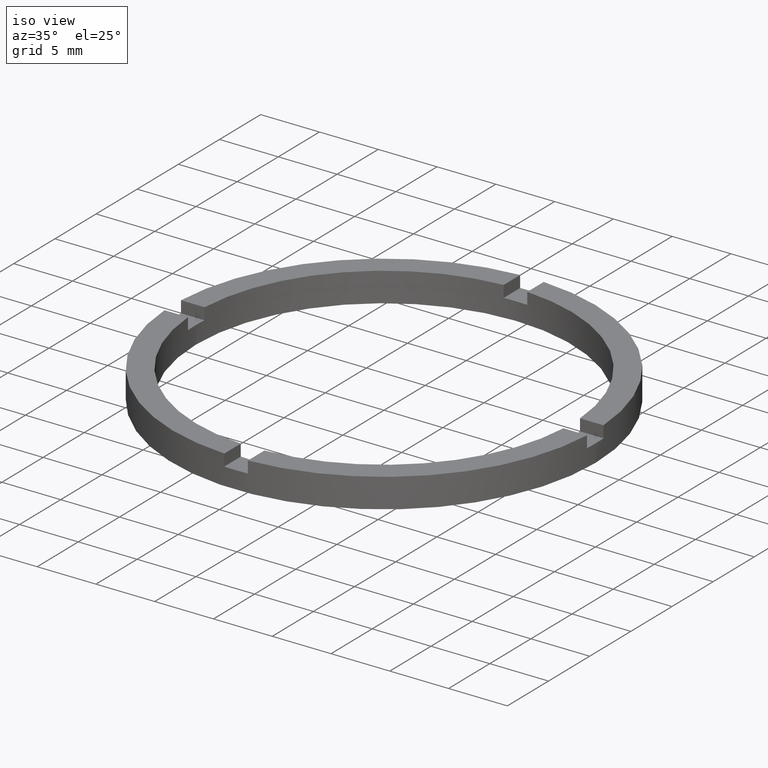
[diagram: clean part render]
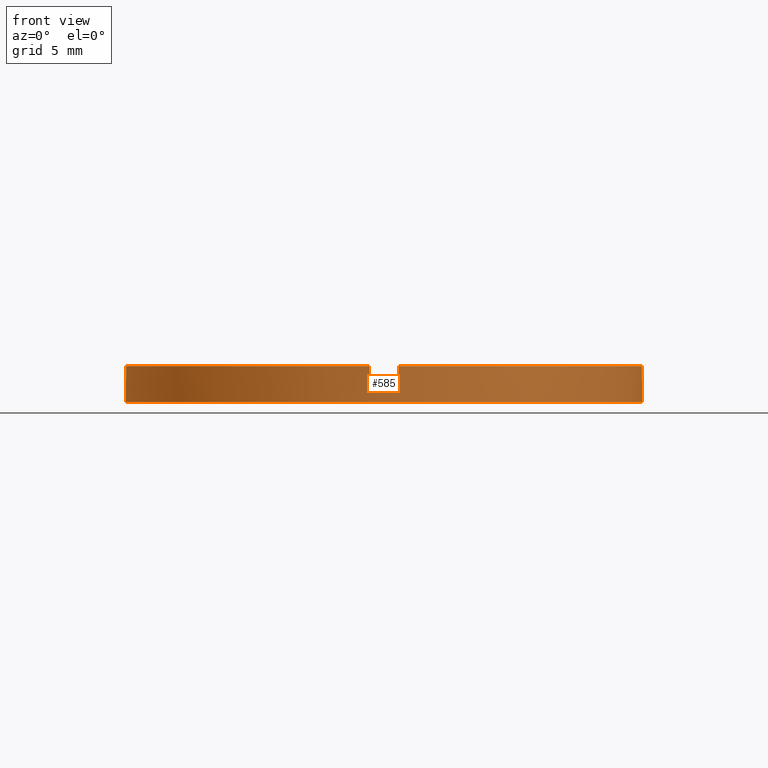
[diagram: tour spotlight — one face highlighted and labeled with its STEP entity id]
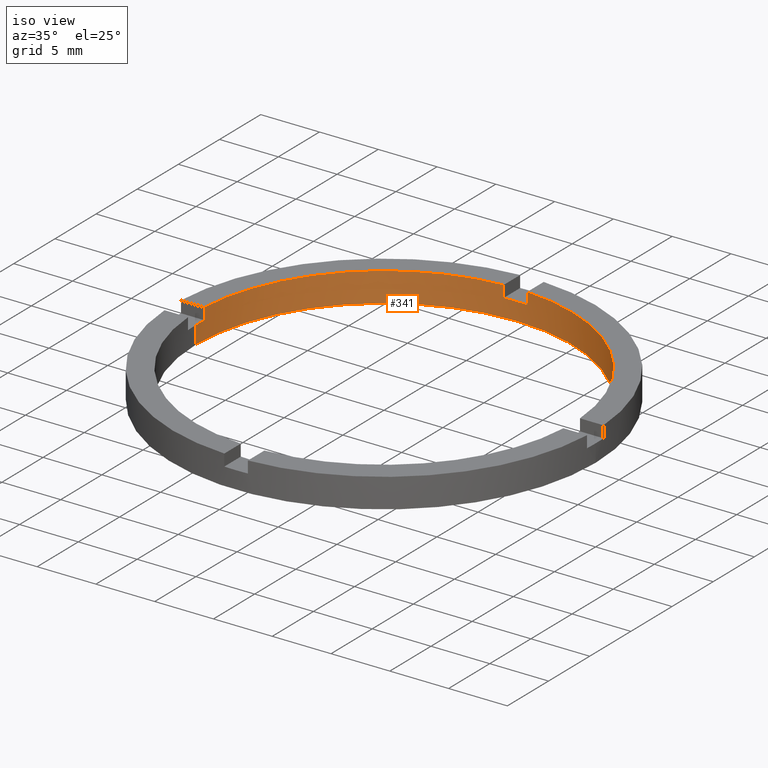
[diagram: tour spotlight — one face highlighted and labeled with its STEP entity id]
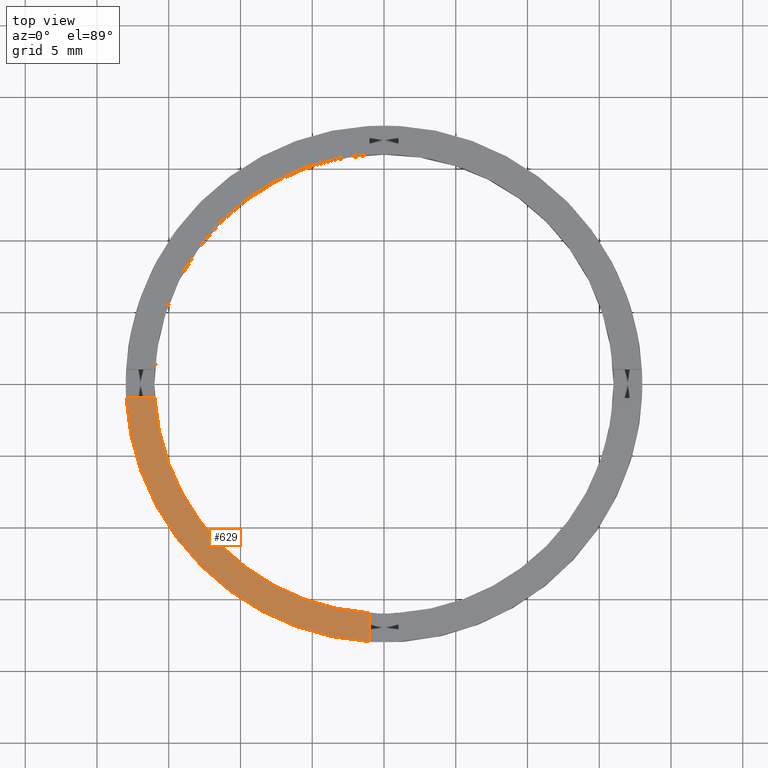
[diagram: tour spotlight — one face highlighted and labeled with its STEP entity id]
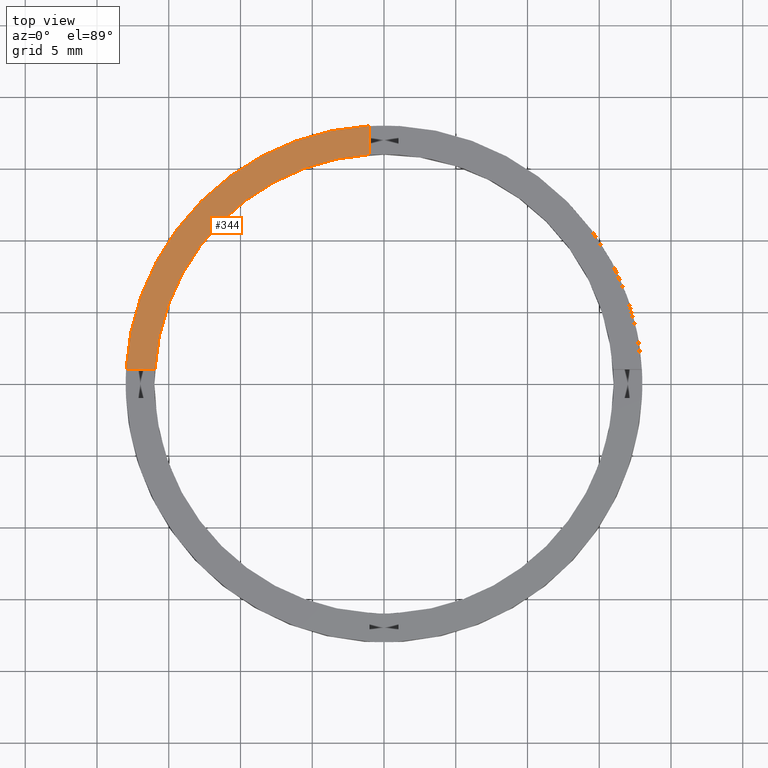
[diagram: tour spotlight — one face highlighted and labeled with its STEP entity id]
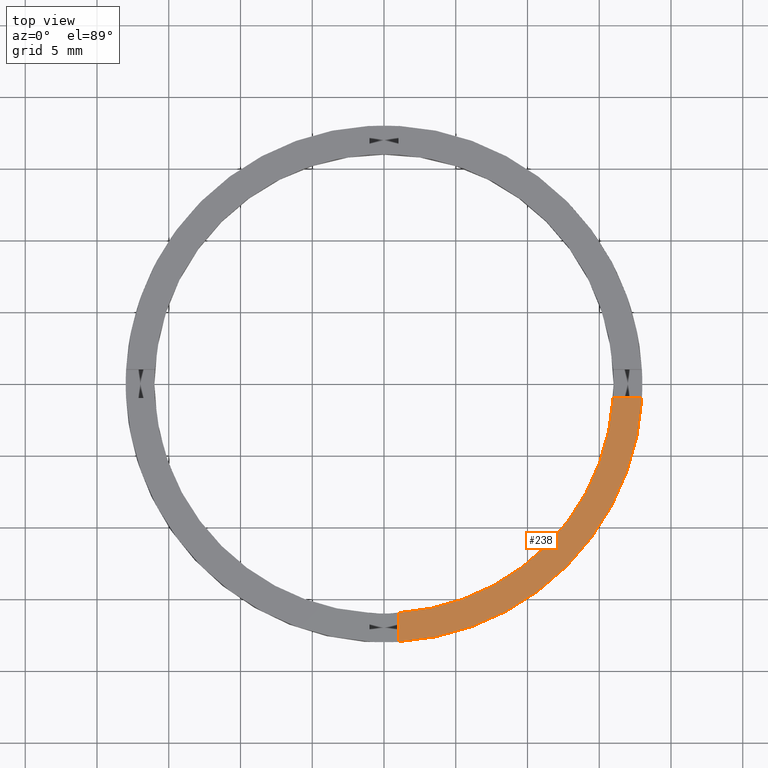
[diagram: tour spotlight — one face highlighted and labeled with its STEP entity id]
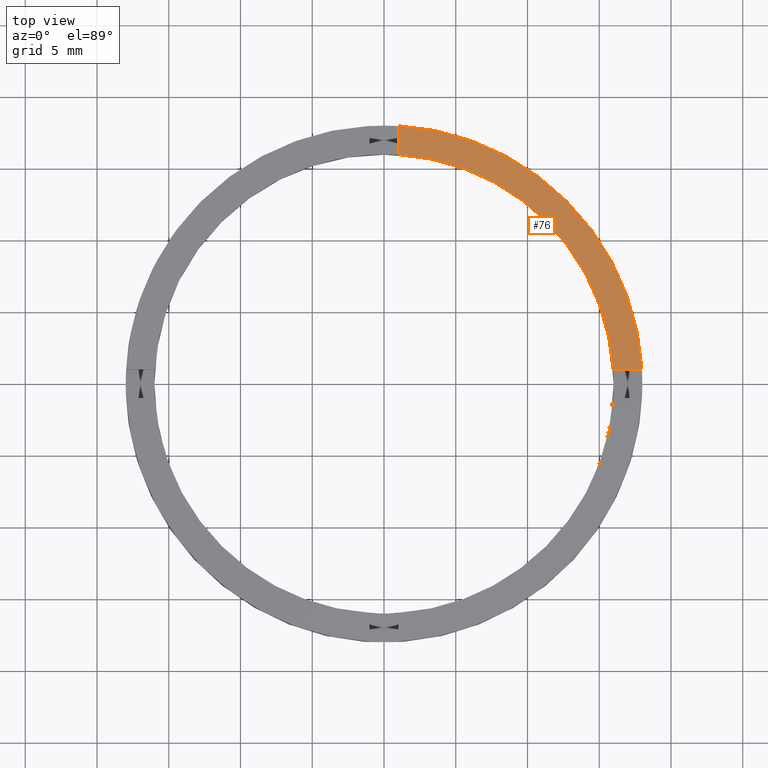
[diagram: tour spotlight — one face highlighted and labeled with its STEP entity id]
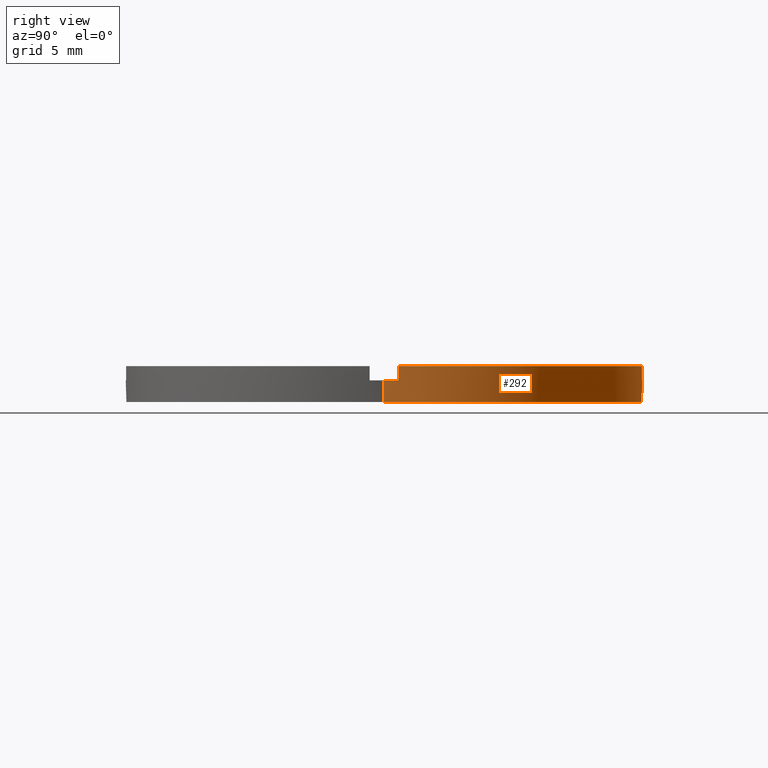
[diagram: tour spotlight — one face highlighted and labeled with its STEP entity id]
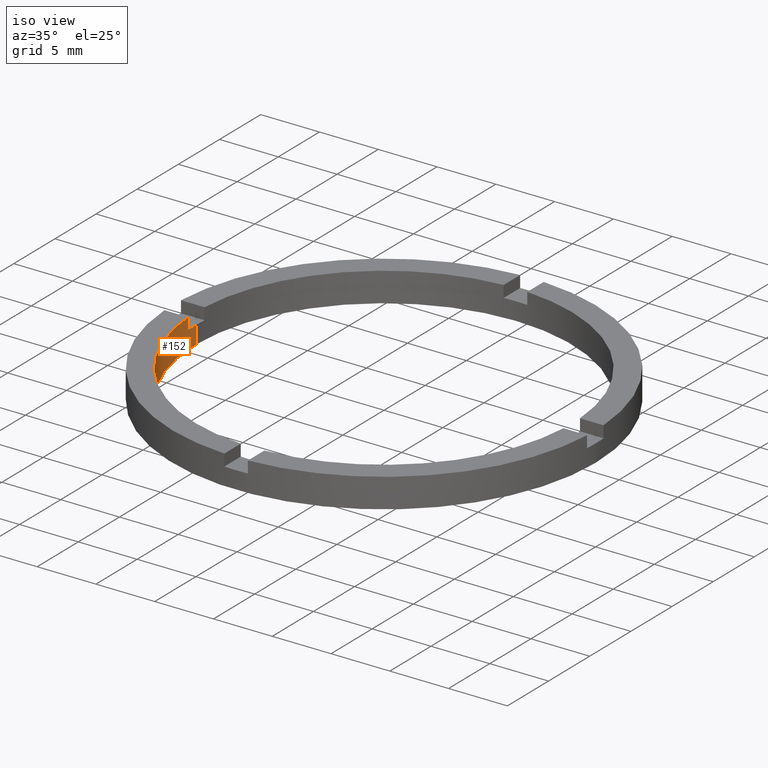
[diagram: tour spotlight — one face highlighted and labeled with its STEP entity id]
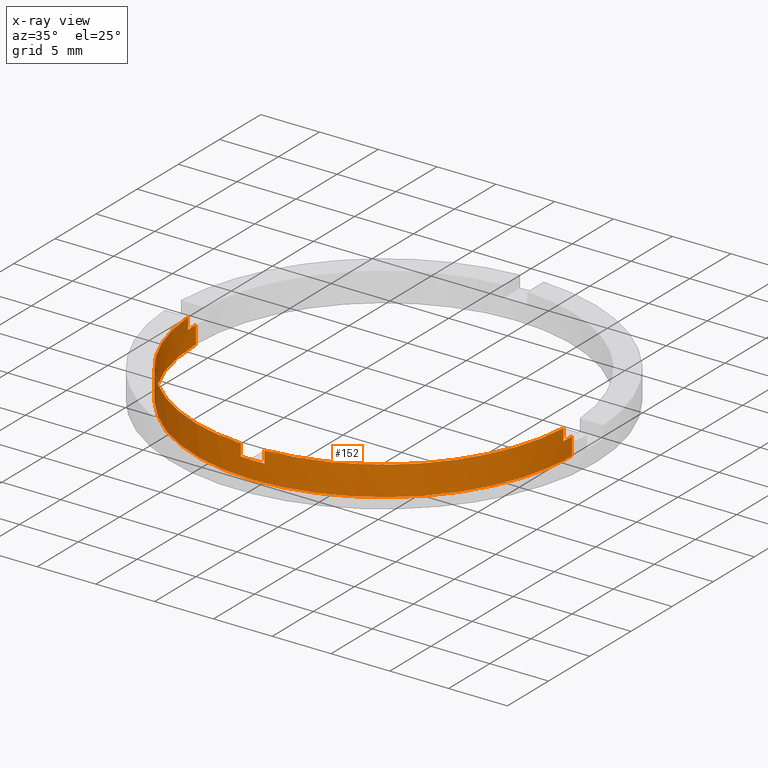
[diagram: x-ray of the same camera — body ghosted, this tour face saturated]
A machine part: a face-by-face anatomy tour. The part has 21 B-rep faces; the first image is the clean iso view, then the 8 largest visible faces are spotlighted one at a time (largest first), each with its STEP entity span.

Face 1 — front view, entity #585. In plain terms, the highlighted cylindrical surface (partial cylindrical patch) has radius 18 mm, axis along (-0, -0, -1).
Definition (entity closure, byte-faithful):
#6 = VERTEX_POINT ( 'NONE', #63 ) ;
#15 = EDGE_LOOP ( 'NONE', ( #45, #669, #408, #33, #425, #561, #39, #167, #764, #145, #23, #768 ) ) ;
#19 = VERTEX_POINT ( 'NONE', #119 ) ;
#20 = CARTESIAN_POINT ( 'NONE',  ( 0.000000000000000000, 0.000000000000000000, 1.500000000000000000 ) ) ;
#23 = ORIENTED_EDGE ( 'NONE', *, *, #427, .T. ) ;
#27 = DIRECTION ( 'NONE',  ( 0.000000000000000000, 0.000000000000000000, 1.000000000000000000 ) ) ;
#32 = VERTEX_POINT ( 'NONE', #186 ) ;
#33 = ORIENTED_EDGE ( 'NONE', *, *, #773, .F. ) ;
#37 = VERTEX_POINT ( 'NONE', #736 ) ;
#39 = ORIENTED_EDGE ( 'NONE', *, *, #457, .T. ) ;
#45 = ORIENTED_EDGE ( 'NONE', *, *, #404, .F. ) ;
#48 = DIRECTION ( 'NONE',  ( -0.000000000000000000, -0.000000000000000000, -1.000000000000000000 ) ) ;
#54 = DIRECTION ( 'NONE',  ( 0.000000000000000000, 0.000000000000000000, 1.000000000000000000 ) ) ;
#63 = CARTESIAN_POINT ( 'NONE',  ( 17.97220075561141783, -1.000000000000158762, 2.500000000000000000 ) ) ;
#70 = DIRECTION ( 'NONE',  ( -0.000000000000000000, -0.000000000000000000, -1.000000000000000000 ) ) ;
#91 = LINE ( 'NONE', #499, #98 ) ;
#92 = DIRECTION ( 'NONE',  ( 1.000000000000000000, 0.000000000000000000, 0.000000000000000000 ) ) ;
#94 = VECTOR ( 'NONE', #54, 1000.000000000000000 ) ;
#98 = VECTOR ( 'NONE', #70, 1000.000000000000000 ) ;
#101 = DIRECTION ( 'NONE',  ( -0.000000000000000000, -0.000000000000000000, -1.000000000000000000 ) ) ;
#102 = VECTOR ( 'NONE', #603, 1000.000000000000000 ) ;
#104 = VECTOR ( 'NONE', #48, 1000.000000000000000 ) ;
#113 = LINE ( 'NONE', #507, #367 ) ;
#116 = CARTESIAN_POINT ( 'NONE',  ( -17.97220075561142849, -1.000000000000023981, 1.500000000000000000 ) ) ;
#119 = CARTESIAN_POINT ( 'NONE',  ( 0.9999999999998373523, -17.97220075561143560, 2.500000000000000000 ) ) ;
#138 = CIRCLE ( 'NONE', #682, 18.00000000000000000 ) ;
#141 = DIRECTION ( 'NONE',  ( 1.000000000000000000, 0.000000000000000000, 0.000000000000000000 ) ) ;
#145 = ORIENTED_EDGE ( 'NONE', *, *, #274, .F. ) ;
#148 = CARTESIAN_POINT ( 'NONE',  ( 18.00000000000000000, 2.204364238465235428E-15, 0.000000000000000000 ) ) ;
#157 = CIRCLE ( 'NONE', #430, 18.00000000000000000 ) ;
#167 = ORIENTED_EDGE ( 'NONE', *, *, #283, .F. ) ;
#179 = DIRECTION ( 'NONE',  ( -0.000000000000000000, -0.000000000000000000, -1.000000000000000000 ) ) ;
#186 = CARTESIAN_POINT ( 'NONE',  ( 0.9999999999998373523, -17.97220075561143560, 1.500000000000000000 ) ) ;
#191 = DIRECTION ( 'NONE',  ( 0.000000000000000000, 0.000000000000000000, 1.000000000000000000 ) ) ;
#192 = CIRCLE ( 'NONE', #538, 18.00000000000000000 ) ;
#206 = VERTEX_POINT ( 'NONE', #466 ) ;
#239 = DIRECTION ( 'NONE',  ( 1.000000000000000000, 0.000000000000000000, 0.000000000000000000 ) ) ;
#263 = AXIS2_PLACEMENT_3D ( 'NONE', #20, #523, #582 ) ;
#269 = VERTEX_POINT ( 'NONE', #752 ) ;
#274 = EDGE_CURVE ( 'NONE', #760, #512, #451, .T. ) ;
#280 = VERTEX_POINT ( 'NONE', #148 ) ;
#283 = EDGE_CURVE ( 'NONE', #37, #772, #192, .T. ) ;
#308 = CARTESIAN_POINT ( 'NONE',  ( -1.000000000000161871, -17.97220075561141428, 1.500000000000000000 ) ) ;
#318 = EDGE_CURVE ( 'NONE', #206, #557, #455, .T. ) ;
#339 = CARTESIAN_POINT ( 'NONE',  ( 0.000000000000000000, 0.000000000000000000, 2.500000000000000000 ) ) ;
#342 = EDGE_CURVE ( 'NONE', #19, #32, #618, .T. ) ;
#343 = DIRECTION ( 'NONE',  ( 0.000000000000000000, 0.000000000000000000, 1.000000000000000000 ) ) ;
#346 = CARTESIAN_POINT ( 'NONE',  ( -17.97220075561142849, -1.000000000000023981, 2.500000000000000000 ) ) ;
#351 = EDGE_CURVE ( 'NONE', #269, #280, #624, .T. ) ;
#352 = DIRECTION ( 'NONE',  ( -1.000000000000000000, 0.000000000000000000, 0.000000000000000000 ) ) ;
#353 = CARTESIAN_POINT ( 'NONE',  ( 17.97220075561141783, -1.000000000000158762, 2.500000000000000000 ) ) ;
#367 = VECTOR ( 'NONE', #191, 1000.000000000000000 ) ;
#381 = DIRECTION ( 'NONE',  ( 1.000000000000000000, 0.000000000000000000, 0.000000000000000000 ) ) ;
#404 = EDGE_CURVE ( 'NONE', #557, #280, #614, .T. ) ;
#408 = ORIENTED_EDGE ( 'NONE', *, *, #555, .T. ) ;
#409 = CARTESIAN_POINT ( 'NONE',  ( 18.00000000000000000, 2.204364238465235428E-15, 1.500000000000000000 ) ) ;
#416 = CARTESIAN_POINT ( 'NONE',  ( 0.000000000000000000, 0.000000000000000000, 2.500000000000000000 ) ) ;
#417 = AXIS2_PLACEMENT_3D ( 'NONE', #706, #767, #239 ) ;
#421 = DIRECTION ( 'NONE',  ( -0.000000000000000000, 0.000000000000000000, 1.000000000000000000 ) ) ;
#425 = ORIENTED_EDGE ( 'NONE', *, *, #342, .T. ) ;
#427 = EDGE_CURVE ( 'NONE', #760, #269, #91, .T. ) ;
#430 = AXIS2_PLACEMENT_3D ( 'NONE', #416, #490, #701 ) ;
#451 = CIRCLE ( 'NONE', #778, 18.00000000000000000 ) ;
#455 = CIRCLE ( 'NONE', #263, 18.00000000000000000 ) ;
#457 = EDGE_CURVE ( 'NONE', #546, #772, #113, .T. ) ;
#466 = CARTESIAN_POINT ( 'NONE',  ( 17.97220075561141783, -1.000000000000158762, 1.500000000000000000 ) ) ;
#477 = CARTESIAN_POINT ( 'NONE',  ( -18.00000000000000000, 0.000000000000000000, 1.500000000000000000 ) ) ;
#480 = CARTESIAN_POINT ( 'NONE',  ( 0.000000000000000000, 0.000000000000000000, 2.500000000000000000 ) ) ;
#481 = AXIS2_PLACEMENT_3D ( 'NONE', #480, #179, #352 ) ;
#490 = DIRECTION ( 'NONE',  ( 0.000000000000000000, 0.000000000000000000, 1.000000000000000000 ) ) ;
#499 = CARTESIAN_POINT ( 'NONE',  ( -18.00000000000000000, 0.000000000000000000, 2.500000000000000000 ) ) ;
#507 = CARTESIAN_POINT ( 'NONE',  ( -1.000000000000162315, -17.97220075561141783, 2.500000000000000000 ) ) ;
#512 = VERTEX_POINT ( 'NONE', #116 ) ;
#520 = CARTESIAN_POINT ( 'NONE',  ( 0.000000000000000000, 0.000000000000000000, 1.500000000000000000 ) ) ;
#523 = DIRECTION ( 'NONE',  ( 0.000000000000000000, 0.000000000000000000, 1.000000000000000000 ) ) ;
#538 = AXIS2_PLACEMENT_3D ( 'NONE', #339, #343, #381 ) ;
#544 = CARTESIAN_POINT ( 'NONE',  ( -1.000000000000161871, -17.97220075561141428, 2.500000000000000000 ) ) ;
#545 = CARTESIAN_POINT ( 'NONE',  ( 18.00000000000000000, 2.204364238465235428E-15, 2.500000000000000000 ) ) ;
#546 = VERTEX_POINT ( 'NONE', #308 ) ;
#553 = CARTESIAN_POINT ( 'NONE',  ( 0.000000000000000000, 0.000000000000000000, 1.500000000000000000 ) ) ;
#555 = EDGE_CURVE ( 'NONE', #206, #6, #622, .T. ) ;
#557 = VERTEX_POINT ( 'NONE', #409 ) ;
#561 = ORIENTED_EDGE ( 'NONE', *, *, #609, .F. ) ;
#582 = DIRECTION ( 'NONE',  ( 1.000000000000000000, 0.000000000000000000, 0.000000000000000000 ) ) ;
#585 = ADVANCED_FACE ( 'NONE', ( #644 ), #648, .T. ) ;
#603 = DIRECTION ( 'NONE',  ( -0.000000000000000000, -0.000000000000000000, -1.000000000000000000 ) ) ;
#609 = EDGE_CURVE ( 'NONE', #546, #32, #138, .T. ) ;
#614 = LINE ( 'NONE', #545, #102 ) ;
#618 = LINE ( 'NONE', #771, #104 ) ;
#622 = LINE ( 'NONE', #353, #94 ) ;
#624 = CIRCLE ( 'NONE', #417, 18.00000000000000000 ) ;
#644 = FACE_OUTER_BOUND ( 'NONE', #15, .T. ) ;
#648 = CYLINDRICAL_SURFACE ( 'NONE', #481, 18.00000000000000000 ) ;
#665 = LINE ( 'NONE', #346, #674 ) ;
#669 = ORIENTED_EDGE ( 'NONE', *, *, #318, .F. ) ;
#674 = VECTOR ( 'NONE', #101, 1000.000000000000000 ) ;
#682 = AXIS2_PLACEMENT_3D ( 'NONE', #553, #421, #92 ) ;
#695 = EDGE_CURVE ( 'NONE', #37, #512, #665, .T. ) ;
#701 = DIRECTION ( 'NONE',  ( 1.000000000000000000, 0.000000000000000000, 0.000000000000000000 ) ) ;
#706 = CARTESIAN_POINT ( 'NONE',  ( 0.000000000000000000, 0.000000000000000000, 0.000000000000000000 ) ) ;
#736 = CARTESIAN_POINT ( 'NONE',  ( -17.97220075561142849, -1.000000000000023981, 2.500000000000000000 ) ) ;
#752 = CARTESIAN_POINT ( 'NONE',  ( -18.00000000000000000, 0.000000000000000000, 0.000000000000000000 ) ) ;
#760 = VERTEX_POINT ( 'NONE', #477 ) ;
#764 = ORIENTED_EDGE ( 'NONE', *, *, #695, .T. ) ;
#767 = DIRECTION ( 'NONE',  ( 0.000000000000000000, 0.000000000000000000, 1.000000000000000000 ) ) ;
#768 = ORIENTED_EDGE ( 'NONE', *, *, #351, .T. ) ;
#771 = CARTESIAN_POINT ( 'NONE',  ( 0.9999999999998377964, -17.97220075561143915, 2.500000000000000000 ) ) ;
#772 = VERTEX_POINT ( 'NONE', #544 ) ;
#773 = EDGE_CURVE ( 'NONE', #19, #6, #157, .T. ) ;
#778 = AXIS2_PLACEMENT_3D ( 'NONE', #520, #27, #141 ) ;

Face 2 — iso view, entity #341. In plain terms, the highlighted cylindrical surface (partial cylindrical patch) has radius 16 mm, axis along (-0, -0, -1).
Definition (entity closure, byte-faithful):
#3 = ORIENTED_EDGE ( 'NONE', *, *, #307, .T. ) ;
#4 = DIRECTION ( 'NONE',  ( 0.000000000000000000, 0.000000000000000000, 1.000000000000000000 ) ) ;
#11 = VERTEX_POINT ( 'NONE', #434 ) ;
#13 = ORIENTED_EDGE ( 'NONE', *, *, #592, .T. ) ;
#59 = CARTESIAN_POINT ( 'NONE',  ( 0.000000000000000000, 0.000000000000000000, 1.500000000000000000 ) ) ;
#60 = CARTESIAN_POINT ( 'NONE',  ( 15.96871942267132027, 0.9999999999998411271, 1.500000000000000000 ) ) ;
#71 = EDGE_CURVE ( 'NONE', #514, #722, #391, .T. ) ;
#79 = CARTESIAN_POINT ( 'NONE',  ( 0.9999999999999742428, 15.96871942267130962, 1.500000000000000000 ) ) ;
#87 = VECTOR ( 'NONE', #593, 1000.000000000000000 ) ;
#96 = FACE_OUTER_BOUND ( 'NONE', #554, .T. ) ;
#97 = DIRECTION ( 'NONE',  ( 0.000000000000000000, -0.000000000000000000, 1.000000000000000000 ) ) ;
#105 = DIRECTION ( 'NONE',  ( 1.000000000000000000, 0.000000000000000000, 0.000000000000000000 ) ) ;
#110 = CYLINDRICAL_SURFACE ( 'NONE', #464, 16.00000000000000000 ) ;
#120 = CIRCLE ( 'NONE', #222, 16.00000000000000000 ) ;
#126 = CARTESIAN_POINT ( 'NONE',  ( -16.00000000000000000, 0.000000000000000000, 2.500000000000000000 ) ) ;
#150 = EDGE_CURVE ( 'NONE', #11, #260, #658, .T. ) ;
#151 = LINE ( 'NONE', #293, #418 ) ;
#166 = EDGE_CURVE ( 'NONE', #279, #508, #183, .T. ) ;
#169 = EDGE_CURVE ( 'NONE', #255, #572, #151, .T. ) ;
#170 = VECTOR ( 'NONE', #349, 1000.000000000000000 ) ;
#173 = VERTEX_POINT ( 'NONE', #443 ) ;
#183 = LINE ( 'NONE', #237, #170 ) ;
#193 = CARTESIAN_POINT ( 'NONE',  ( -15.96871942267131317, 0.9999999999999763522, 2.500000000000000000 ) ) ;
#194 = ORIENTED_EDGE ( 'NONE', *, *, #150, .T. ) ;
#195 = DIRECTION ( 'NONE',  ( 1.000000000000000000, 0.000000000000000000, 0.000000000000000000 ) ) ;
#200 = CIRCLE ( 'NONE', #703, 16.00000000000000000 ) ;
#222 = AXIS2_PLACEMENT_3D ( 'NONE', #781, #395, #105 ) ;
#231 = CARTESIAN_POINT ( 'NONE',  ( 0.000000000000000000, 0.000000000000000000, 2.500000000000000000 ) ) ;
#237 = CARTESIAN_POINT ( 'NONE',  ( 0.9999999999999746869, 15.96871942267131317, 2.500000000000000000 ) ) ;
#255 = VERTEX_POINT ( 'NONE', #377 ) ;
#260 = VERTEX_POINT ( 'NONE', #625 ) ;
#270 = CARTESIAN_POINT ( 'NONE',  ( 0.000000000000000000, 0.000000000000000000, 0.000000000000000000 ) ) ;
#275 = DIRECTION ( 'NONE',  ( -0.000000000000000000, -0.000000000000000000, -1.000000000000000000 ) ) ;
#278 = ORIENTED_EDGE ( 'NONE', *, *, #526, .T. ) ;
#279 = VERTEX_POINT ( 'NONE', #79 ) ;
#285 = VERTEX_POINT ( 'NONE', #288 ) ;
#286 = ORIENTED_EDGE ( 'NONE', *, *, #166, .F. ) ;
#288 = CARTESIAN_POINT ( 'NONE',  ( 15.96871942267132027, 0.9999999999998411271, 2.500000000000000000 ) ) ;
#293 = CARTESIAN_POINT ( 'NONE',  ( -1.000000000000025313, 15.96871942267130962, 2.500000000000000000 ) ) ;
#296 = CARTESIAN_POINT ( 'NONE',  ( -1.000000000000024869, 15.96871942267130606, 1.500000000000000000 ) ) ;
#307 = EDGE_CURVE ( 'NONE', #285, #508, #200, .T. ) ;
#321 = AXIS2_PLACEMENT_3D ( 'NONE', #365, #4, #195 ) ;
#331 = DIRECTION ( 'NONE',  ( 0.000000000000000000, 0.000000000000000000, 1.000000000000000000 ) ) ;
#337 = DIRECTION ( 'NONE',  ( 1.000000000000000000, 0.000000000000000000, 0.000000000000000000 ) ) ;
#341 = ADVANCED_FACE ( 'NONE', ( #96 ), #110, .F. ) ;
#347 = DIRECTION ( 'NONE',  ( -1.000000000000000000, 0.000000000000000000, 0.000000000000000000 ) ) ;
#349 = DIRECTION ( 'NONE',  ( 0.000000000000000000, 0.000000000000000000, 1.000000000000000000 ) ) ;
#360 = CIRCLE ( 'NONE', #529, 16.00000000000000000 ) ;
#365 = CARTESIAN_POINT ( 'NONE',  ( 0.000000000000000000, 0.000000000000000000, 1.500000000000000000 ) ) ;
#368 = VECTOR ( 'NONE', #611, 1000.000000000000000 ) ;
#375 = CARTESIAN_POINT ( 'NONE',  ( 15.96871942267132027, 0.9999999999998411271, 2.500000000000000000 ) ) ;
#377 = CARTESIAN_POINT ( 'NONE',  ( -1.000000000000024869, 15.96871942267130606, 2.500000000000000000 ) ) ;
#378 = LINE ( 'NONE', #375, #368 ) ;
#385 = CIRCLE ( 'NONE', #634, 16.00000000000000000 ) ;
#391 = CIRCLE ( 'NONE', #321, 16.00000000000000000 ) ;
#393 = VECTOR ( 'NONE', #445, 1000.000000000000000 ) ;
#395 = DIRECTION ( 'NONE',  ( 0.000000000000000000, 0.000000000000000000, 1.000000000000000000 ) ) ;
#397 = VECTOR ( 'NONE', #331, 1000.000000000000000 ) ;
#406 = LINE ( 'NONE', #487, #397 ) ;
#418 = VECTOR ( 'NONE', #761, 1000.000000000000000 ) ;
#419 = ORIENTED_EDGE ( 'NONE', *, *, #446, .F. ) ;
#422 = CARTESIAN_POINT ( 'NONE',  ( 0.000000000000000000, 0.000000000000000000, 1.500000000000000000 ) ) ;
#428 = CARTESIAN_POINT ( 'NONE',  ( 16.00000000000000000, 1.959434878635765131E-15, 2.500000000000000000 ) ) ;
#429 = ORIENTED_EDGE ( 'NONE', *, *, #521, .F. ) ;
#434 = CARTESIAN_POINT ( 'NONE',  ( -16.00000000000000000, 0.000000000000000000, 1.500000000000000000 ) ) ;
#436 = ORIENTED_EDGE ( 'NONE', *, *, #581, .T. ) ;
#443 = CARTESIAN_POINT ( 'NONE',  ( 16.00000000000000000, 1.959434878635765131E-15, 0.000000000000000000 ) ) ;
#445 = DIRECTION ( 'NONE',  ( -0.000000000000000000, -0.000000000000000000, -1.000000000000000000 ) ) ;
#446 = EDGE_CURVE ( 'NONE', #173, #260, #620, .T. ) ;
#449 = ORIENTED_EDGE ( 'NONE', *, *, #169, .F. ) ;
#464 = AXIS2_PLACEMENT_3D ( 'NONE', #630, #275, #347 ) ;
#487 = CARTESIAN_POINT ( 'NONE',  ( -15.96871942267131317, 0.9999999999999763522, 2.500000000000000000 ) ) ;
#489 = EDGE_CURVE ( 'NONE', #285, #722, #378, .T. ) ;
#492 = VERTEX_POINT ( 'NONE', #685 ) ;
#498 = DIRECTION ( 'NONE',  ( 1.000000000000000000, 0.000000000000000000, 0.000000000000000000 ) ) ;
#505 = CARTESIAN_POINT ( 'NONE',  ( 16.00000000000000000, 1.959434878635765131E-15, 1.500000000000000000 ) ) ;
#508 = VERTEX_POINT ( 'NONE', #549 ) ;
#514 = VERTEX_POINT ( 'NONE', #505 ) ;
#515 = VERTEX_POINT ( 'NONE', #193 ) ;
#521 = EDGE_CURVE ( 'NONE', #514, #173, #613, .T. ) ;
#526 = EDGE_CURVE ( 'NONE', #279, #572, #360, .T. ) ;
#529 = AXIS2_PLACEMENT_3D ( 'NONE', #422, #97, #661 ) ;
#549 = CARTESIAN_POINT ( 'NONE',  ( 0.9999999999999742428, 15.96871942267130962, 2.500000000000000000 ) ) ;
#554 = EDGE_LOOP ( 'NONE', ( #429, #668, #779, #3, #286, #278, #449, #436, #708, #13, #194, #419 ) ) ;
#572 = VERTEX_POINT ( 'NONE', #296 ) ;
#581 = EDGE_CURVE ( 'NONE', #255, #515, #120, .T. ) ;
#592 = EDGE_CURVE ( 'NONE', #492, #11, #385, .T. ) ;
#593 = DIRECTION ( 'NONE',  ( -0.000000000000000000, -0.000000000000000000, -1.000000000000000000 ) ) ;
#611 = DIRECTION ( 'NONE',  ( -0.000000000000000000, -0.000000000000000000, -1.000000000000000000 ) ) ;
#613 = LINE ( 'NONE', #428, #87 ) ;
#619 = EDGE_CURVE ( 'NONE', #492, #515, #406, .T. ) ;
#620 = CIRCLE ( 'NONE', #713, 16.00000000000000000 ) ;
#625 = CARTESIAN_POINT ( 'NONE',  ( -16.00000000000000000, 0.000000000000000000, 0.000000000000000000 ) ) ;
#630 = CARTESIAN_POINT ( 'NONE',  ( 0.000000000000000000, 0.000000000000000000, 2.500000000000000000 ) ) ;
#634 = AXIS2_PLACEMENT_3D ( 'NONE', #59, #660, #498 ) ;
#658 = LINE ( 'NONE', #126, #393 ) ;
#659 = DIRECTION ( 'NONE',  ( 0.000000000000000000, 0.000000000000000000, 1.000000000000000000 ) ) ;
#660 = DIRECTION ( 'NONE',  ( 0.000000000000000000, 0.000000000000000000, 1.000000000000000000 ) ) ;
#661 = DIRECTION ( 'NONE',  ( 1.000000000000000000, 0.000000000000000000, 0.000000000000000000 ) ) ;
#668 = ORIENTED_EDGE ( 'NONE', *, *, #71, .T. ) ;
#678 = DIRECTION ( 'NONE',  ( 1.000000000000000000, 0.000000000000000000, 0.000000000000000000 ) ) ;
#685 = CARTESIAN_POINT ( 'NONE',  ( -15.96871942267131317, 0.9999999999999763522, 1.500000000000000000 ) ) ;
#694 = DIRECTION ( 'NONE',  ( 0.000000000000000000, 0.000000000000000000, 1.000000000000000000 ) ) ;
#703 = AXIS2_PLACEMENT_3D ( 'NONE', #231, #694, #337 ) ;
#708 = ORIENTED_EDGE ( 'NONE', *, *, #619, .F. ) ;
#713 = AXIS2_PLACEMENT_3D ( 'NONE', #270, #659, #678 ) ;
#722 = VERTEX_POINT ( 'NONE', #60 ) ;
#761 = DIRECTION ( 'NONE',  ( -0.000000000000000000, -0.000000000000000000, -1.000000000000000000 ) ) ;
#779 = ORIENTED_EDGE ( 'NONE', *, *, #489, .F. ) ;
#781 = CARTESIAN_POINT ( 'NONE',  ( 0.000000000000000000, 0.000000000000000000, 2.500000000000000000 ) ) ;

Face 3 — top view, entity #629. In plain terms, the highlighted planar face has unit normal (0, 0, 1).
Definition (entity closure, byte-faithful):
#37 = VERTEX_POINT ( 'NONE', #736 ) ;
#66 = PLANE ( 'NONE',  #182 ) ;
#83 = DIRECTION ( 'NONE',  ( 1.301042606982605074E-16, -1.000000000000000000, 0.000000000000000000 ) ) ;
#99 = EDGE_CURVE ( 'NONE', #537, #460, #646, .T. ) ;
#128 = CARTESIAN_POINT ( 'NONE',  ( -1.000000000000162093, -15.96871942267129718, 2.500000000000000000 ) ) ;
#142 = FACE_OUTER_BOUND ( 'NONE', #704, .T. ) ;
#182 = AXIS2_PLACEMENT_3D ( 'NONE', #203, #679, #215 ) ;
#192 = CIRCLE ( 'NONE', #538, 18.00000000000000000 ) ;
#203 = CARTESIAN_POINT ( 'NONE',  ( 0.000000000000000000, 0.000000000000000000, 2.500000000000000000 ) ) ;
#215 = DIRECTION ( 'NONE',  ( 1.000000000000000000, 0.000000000000000000, -0.000000000000000000 ) ) ;
#250 = ORIENTED_EDGE ( 'NONE', *, *, #283, .T. ) ;
#283 = EDGE_CURVE ( 'NONE', #37, #772, #192, .T. ) ;
#339 = CARTESIAN_POINT ( 'NONE',  ( 0.000000000000000000, 0.000000000000000000, 2.500000000000000000 ) ) ;
#343 = DIRECTION ( 'NONE',  ( 0.000000000000000000, 0.000000000000000000, 1.000000000000000000 ) ) ;
#381 = DIRECTION ( 'NONE',  ( 1.000000000000000000, 0.000000000000000000, 0.000000000000000000 ) ) ;
#392 = EDGE_CURVE ( 'NONE', #37, #537, #639, .T. ) ;
#410 = LINE ( 'NONE', #777, #673 ) ;
#431 = CARTESIAN_POINT ( 'NONE',  ( 0.000000000000000000, 0.000000000000000000, 2.500000000000000000 ) ) ;
#438 = CARTESIAN_POINT ( 'NONE',  ( -8.000000000000184741, -1.000000000000022204, 2.500000000000000000 ) ) ;
#460 = VERTEX_POINT ( 'NONE', #128 ) ;
#493 = CARTESIAN_POINT ( 'NONE',  ( -15.96871942267130962, -1.000000000000023759, 2.500000000000000000 ) ) ;
#501 = DIRECTION ( 'NONE',  ( 0.000000000000000000, 0.000000000000000000, 1.000000000000000000 ) ) ;
#537 = VERTEX_POINT ( 'NONE', #493 ) ;
#538 = AXIS2_PLACEMENT_3D ( 'NONE', #339, #343, #381 ) ;
#544 = CARTESIAN_POINT ( 'NONE',  ( -1.000000000000161871, -17.97220075561141428, 2.500000000000000000 ) ) ;
#547 = ORIENTED_EDGE ( 'NONE', *, *, #392, .F. ) ;
#629 = ADVANCED_FACE ( 'NONE', ( #142 ), #66, .T. ) ;
#631 = VECTOR ( 'NONE', #737, 1000.000000000000000 ) ;
#639 = LINE ( 'NONE', #438, #631 ) ;
#646 = CIRCLE ( 'NONE', #746, 16.00000000000000000 ) ;
#673 = VECTOR ( 'NONE', #83, 1000.000000000000000 ) ;
#676 = ORIENTED_EDGE ( 'NONE', *, *, #742, .F. ) ;
#679 = DIRECTION ( 'NONE',  ( 0.000000000000000000, 0.000000000000000000, 1.000000000000000000 ) ) ;
#704 = EDGE_LOOP ( 'NONE', ( #676, #780, #547, #250 ) ) ;
#736 = CARTESIAN_POINT ( 'NONE',  ( -17.97220075561142849, -1.000000000000023981, 2.500000000000000000 ) ) ;
#737 = DIRECTION ( 'NONE',  ( 1.000000000000000000, 1.734723475976806848E-16, -0.000000000000000000 ) ) ;
#742 = EDGE_CURVE ( 'NONE', #460, #772, #410, .T. ) ;
#746 = AXIS2_PLACEMENT_3D ( 'NONE', #431, #501, #748 ) ;
#748 = DIRECTION ( 'NONE',  ( 1.000000000000000000, 0.000000000000000000, 0.000000000000000000 ) ) ;
#772 = VERTEX_POINT ( 'NONE', #544 ) ;
#777 = CARTESIAN_POINT ( 'NONE',  ( -1.000000000000163425, -8.000000000000179412, 2.500000000000000000 ) ) ;
#780 = ORIENTED_EDGE ( 'NONE', *, *, #99, .F. ) ;

Face 4 — top view, entity #344. In plain terms, the highlighted planar face has unit normal (0, 0, 1).
Definition (entity closure, byte-faithful):
#36 = ORIENTED_EDGE ( 'NONE', *, *, #657, .F. ) ;
#86 = DIRECTION ( 'NONE',  ( 0.000000000000000000, 0.000000000000000000, 1.000000000000000000 ) ) ;
#105 = DIRECTION ( 'NONE',  ( 1.000000000000000000, 0.000000000000000000, 0.000000000000000000 ) ) ;
#114 = LINE ( 'NONE', #298, #636 ) ;
#120 = CIRCLE ( 'NONE', #222, 16.00000000000000000 ) ;
#121 = CIRCLE ( 'NONE', #336, 18.00000000000000000 ) ;
#127 = AXIS2_PLACEMENT_3D ( 'NONE', #527, #86, #396 ) ;
#181 = DIRECTION ( 'NONE',  ( -0.000000000000000000, -1.000000000000000000, -0.000000000000000000 ) ) ;
#193 = CARTESIAN_POINT ( 'NONE',  ( -15.96871942267131317, 0.9999999999999763522, 2.500000000000000000 ) ) ;
#222 = AXIS2_PLACEMENT_3D ( 'NONE', #781, #395, #105 ) ;
#244 = EDGE_LOOP ( 'NONE', ( #36, #516, #295, #265 ) ) ;
#255 = VERTEX_POINT ( 'NONE', #377 ) ;
#265 = ORIENTED_EDGE ( 'NONE', *, *, #581, .F. ) ;
#295 = ORIENTED_EDGE ( 'NONE', *, *, #366, .F. ) ;
#298 = CARTESIAN_POINT ( 'NONE',  ( -8.000000000000184741, 0.9999999999999779066, 2.500000000000000000 ) ) ;
#330 = DIRECTION ( 'NONE',  ( -1.000000000000000000, -1.734723475976806848E-16, 0.000000000000000000 ) ) ;
#336 = AXIS2_PLACEMENT_3D ( 'NONE', #652, #504, #597 ) ;
#344 = ADVANCED_FACE ( 'NONE', ( #628 ), #472, .T. ) ;
#366 = EDGE_CURVE ( 'NONE', #515, #580, #114, .T. ) ;
#377 = CARTESIAN_POINT ( 'NONE',  ( -1.000000000000024869, 15.96871942267130606, 2.500000000000000000 ) ) ;
#395 = DIRECTION ( 'NONE',  ( 0.000000000000000000, 0.000000000000000000, 1.000000000000000000 ) ) ;
#396 = DIRECTION ( 'NONE',  ( 1.000000000000000000, 0.000000000000000000, -0.000000000000000000 ) ) ;
#402 = CARTESIAN_POINT ( 'NONE',  ( -17.97220075561142849, 0.9999999999999761302, 2.500000000000000000 ) ) ;
#423 = VECTOR ( 'NONE', #181, 1000.000000000000000 ) ;
#424 = LINE ( 'NONE', #745, #423 ) ;
#472 = PLANE ( 'NONE',  #127 ) ;
#496 = VERTEX_POINT ( 'NONE', #749 ) ;
#504 = DIRECTION ( 'NONE',  ( 0.000000000000000000, 0.000000000000000000, 1.000000000000000000 ) ) ;
#515 = VERTEX_POINT ( 'NONE', #193 ) ;
#516 = ORIENTED_EDGE ( 'NONE', *, *, #590, .T. ) ;
#527 = CARTESIAN_POINT ( 'NONE',  ( 0.000000000000000000, 0.000000000000000000, 2.500000000000000000 ) ) ;
#580 = VERTEX_POINT ( 'NONE', #402 ) ;
#581 = EDGE_CURVE ( 'NONE', #255, #515, #120, .T. ) ;
#590 = EDGE_CURVE ( 'NONE', #496, #580, #121, .T. ) ;
#597 = DIRECTION ( 'NONE',  ( 1.000000000000000000, 0.000000000000000000, 0.000000000000000000 ) ) ;
#628 = FACE_OUTER_BOUND ( 'NONE', #244, .T. ) ;
#636 = VECTOR ( 'NONE', #330, 1000.000000000000000 ) ;
#652 = CARTESIAN_POINT ( 'NONE',  ( 0.000000000000000000, 0.000000000000000000, 2.500000000000000000 ) ) ;
#657 = EDGE_CURVE ( 'NONE', #496, #255, #424, .T. ) ;
#745 = CARTESIAN_POINT ( 'NONE',  ( -1.000000000000025313, 7.999999999999998224, 2.500000000000000000 ) ) ;
#749 = CARTESIAN_POINT ( 'NONE',  ( -1.000000000000024869, 17.97220075561142494, 2.500000000000000000 ) ) ;
#781 = CARTESIAN_POINT ( 'NONE',  ( 0.000000000000000000, 0.000000000000000000, 2.500000000000000000 ) ) ;

Face 5 — top view, entity #238. In plain terms, the highlighted planar face has unit normal (0, 0, 1).
Definition (entity closure, byte-faithful):
#6 = VERTEX_POINT ( 'NONE', #63 ) ;
#18 = DIRECTION ( 'NONE',  ( 0.000000000000000000, 0.000000000000000000, 1.000000000000000000 ) ) ;
#19 = VERTEX_POINT ( 'NONE', #119 ) ;
#30 = DIRECTION ( 'NONE',  ( 0.000000000000000000, 0.000000000000000000, 1.000000000000000000 ) ) ;
#63 = CARTESIAN_POINT ( 'NONE',  ( 17.97220075561141783, -1.000000000000158762, 2.500000000000000000 ) ) ;
#69 = DIRECTION ( 'NONE',  ( 1.000000000000000000, 4.336808689942017120E-17, 0.000000000000000000 ) ) ;
#106 = EDGE_CURVE ( 'NONE', #246, #6, #386, .T. ) ;
#111 = EDGE_CURVE ( 'NONE', #19, #171, #133, .T. ) ;
#119 = CARTESIAN_POINT ( 'NONE',  ( 0.9999999999998373523, -17.97220075561143560, 2.500000000000000000 ) ) ;
#125 = VECTOR ( 'NONE', #132, 1000.000000000000000 ) ;
#131 = VECTOR ( 'NONE', #69, 1000.000000000000000 ) ;
#132 = DIRECTION ( 'NONE',  ( -1.301042606982605074E-16, 1.000000000000000000, -0.000000000000000000 ) ) ;
#133 = LINE ( 'NONE', #610, #125 ) ;
#157 = CIRCLE ( 'NONE', #430, 18.00000000000000000 ) ;
#160 = ORIENTED_EDGE ( 'NONE', *, *, #773, .T. ) ;
#171 = VERTEX_POINT ( 'NONE', #615 ) ;
#238 = ADVANCED_FACE ( 'NONE', ( #433 ), #569, .T. ) ;
#246 = VERTEX_POINT ( 'NONE', #290 ) ;
#267 = ORIENTED_EDGE ( 'NONE', *, *, #287, .F. ) ;
#287 = EDGE_CURVE ( 'NONE', #171, #246, #709, .T. ) ;
#290 = CARTESIAN_POINT ( 'NONE',  ( 15.96871942267130429, -1.000000000000158984, 2.500000000000000000 ) ) ;
#302 = AXIS2_PLACEMENT_3D ( 'NONE', #747, #18, #688 ) ;
#386 = LINE ( 'NONE', #509, #131 ) ;
#416 = CARTESIAN_POINT ( 'NONE',  ( 0.000000000000000000, 0.000000000000000000, 2.500000000000000000 ) ) ;
#430 = AXIS2_PLACEMENT_3D ( 'NONE', #416, #490, #701 ) ;
#433 = FACE_OUTER_BOUND ( 'NONE', #750, .T. ) ;
#490 = DIRECTION ( 'NONE',  ( 0.000000000000000000, 0.000000000000000000, 1.000000000000000000 ) ) ;
#506 = AXIS2_PLACEMENT_3D ( 'NONE', #757, #30, #518 ) ;
#509 = CARTESIAN_POINT ( 'NONE',  ( 7.999999999999992895, -1.000000000000159206, 2.500000000000000000 ) ) ;
#513 = ORIENTED_EDGE ( 'NONE', *, *, #106, .F. ) ;
#518 = DIRECTION ( 'NONE',  ( 1.000000000000000000, 0.000000000000000000, 0.000000000000000000 ) ) ;
#524 = ORIENTED_EDGE ( 'NONE', *, *, #111, .F. ) ;
#569 = PLANE ( 'NONE',  #302 ) ;
#610 = CARTESIAN_POINT ( 'NONE',  ( 0.9999999999998365752, -8.000000000000179412, 2.500000000000000000 ) ) ;
#615 = CARTESIAN_POINT ( 'NONE',  ( 0.9999999999998371303, -15.96871942267132027, 2.500000000000000000 ) ) ;
#688 = DIRECTION ( 'NONE',  ( 1.000000000000000000, 0.000000000000000000, -0.000000000000000000 ) ) ;
#701 = DIRECTION ( 'NONE',  ( 1.000000000000000000, 0.000000000000000000, 0.000000000000000000 ) ) ;
#709 = CIRCLE ( 'NONE', #506, 16.00000000000000000 ) ;
#747 = CARTESIAN_POINT ( 'NONE',  ( 0.000000000000000000, 0.000000000000000000, 2.500000000000000000 ) ) ;
#750 = EDGE_LOOP ( 'NONE', ( #513, #267, #524, #160 ) ) ;
#757 = CARTESIAN_POINT ( 'NONE',  ( 0.000000000000000000, 0.000000000000000000, 2.500000000000000000 ) ) ;
#773 = EDGE_CURVE ( 'NONE', #19, #6, #157, .T. ) ;

Face 6 — top view, entity #76. In plain terms, the highlighted planar face has unit normal (0, 0, 1).
Definition (entity closure, byte-faithful):
#1 = EDGE_LOOP ( 'NONE', ( #689, #310, #299, #311 ) ) ;
#14 = CARTESIAN_POINT ( 'NONE',  ( 0.9999999999999742428, 17.97220075561142494, 2.500000000000000000 ) ) ;
#16 = CARTESIAN_POINT ( 'NONE',  ( 0.000000000000000000, 0.000000000000000000, 2.500000000000000000 ) ) ;
#57 = DIRECTION ( 'NONE',  ( -1.000000000000000000, -4.336808689942017120E-17, -0.000000000000000000 ) ) ;
#64 = DIRECTION ( 'NONE',  ( 1.000000000000000000, 0.000000000000000000, 0.000000000000000000 ) ) ;
#76 = ADVANCED_FACE ( 'NONE', ( #370 ), #180, .T. ) ;
#163 = VERTEX_POINT ( 'NONE', #164 ) ;
#164 = CARTESIAN_POINT ( 'NONE',  ( 17.97220075561143560, 0.9999999999998412381, 2.500000000000000000 ) ) ;
#180 = PLANE ( 'NONE',  #670 ) ;
#200 = CIRCLE ( 'NONE', #703, 16.00000000000000000 ) ;
#229 = VERTEX_POINT ( 'NONE', #14 ) ;
#231 = CARTESIAN_POINT ( 'NONE',  ( 0.000000000000000000, 0.000000000000000000, 2.500000000000000000 ) ) ;
#285 = VERTEX_POINT ( 'NONE', #288 ) ;
#288 = CARTESIAN_POINT ( 'NONE',  ( 15.96871942267132027, 0.9999999999998411271, 2.500000000000000000 ) ) ;
#299 = ORIENTED_EDGE ( 'NONE', *, *, #766, .F. ) ;
#307 = EDGE_CURVE ( 'NONE', #285, #508, #200, .T. ) ;
#310 = ORIENTED_EDGE ( 'NONE', *, *, #307, .F. ) ;
#311 = ORIENTED_EDGE ( 'NONE', *, *, #503, .T. ) ;
#325 = DIRECTION ( 'NONE',  ( 0.000000000000000000, 0.000000000000000000, 1.000000000000000000 ) ) ;
#337 = DIRECTION ( 'NONE',  ( 1.000000000000000000, 0.000000000000000000, 0.000000000000000000 ) ) ;
#355 = CARTESIAN_POINT ( 'NONE',  ( 7.999999999999992895, 0.9999999999998409050, 2.500000000000000000 ) ) ;
#370 = FACE_OUTER_BOUND ( 'NONE', #1, .T. ) ;
#400 = LINE ( 'NONE', #355, #675 ) ;
#405 = CARTESIAN_POINT ( 'NONE',  ( 0.9999999999999746869, 7.999999999999998224, 2.500000000000000000 ) ) ;
#503 = EDGE_CURVE ( 'NONE', #163, #229, #632, .T. ) ;
#508 = VERTEX_POINT ( 'NONE', #549 ) ;
#535 = DIRECTION ( 'NONE',  ( 0.000000000000000000, 1.000000000000000000, 0.000000000000000000 ) ) ;
#549 = CARTESIAN_POINT ( 'NONE',  ( 0.9999999999999742428, 15.96871942267130962, 2.500000000000000000 ) ) ;
#564 = AXIS2_PLACEMENT_3D ( 'NONE', #738, #325, #64 ) ;
#594 = DIRECTION ( 'NONE',  ( 0.000000000000000000, 0.000000000000000000, 1.000000000000000000 ) ) ;
#605 = DIRECTION ( 'NONE',  ( 1.000000000000000000, 0.000000000000000000, -0.000000000000000000 ) ) ;
#632 = CIRCLE ( 'NONE', #564, 18.00000000000000000 ) ;
#667 = VECTOR ( 'NONE', #535, 1000.000000000000000 ) ;
#670 = AXIS2_PLACEMENT_3D ( 'NONE', #16, #594, #605 ) ;
#675 = VECTOR ( 'NONE', #57, 1000.000000000000000 ) ;
#681 = LINE ( 'NONE', #405, #667 ) ;
#689 = ORIENTED_EDGE ( 'NONE', *, *, #744, .F. ) ;
#694 = DIRECTION ( 'NONE',  ( 0.000000000000000000, 0.000000000000000000, 1.000000000000000000 ) ) ;
#703 = AXIS2_PLACEMENT_3D ( 'NONE', #231, #694, #337 ) ;
#738 = CARTESIAN_POINT ( 'NONE',  ( 0.000000000000000000, 0.000000000000000000, 2.500000000000000000 ) ) ;
#744 = EDGE_CURVE ( 'NONE', #508, #229, #681, .T. ) ;
#766 = EDGE_CURVE ( 'NONE', #163, #285, #400, .T. ) ;

Face 7 — right view, entity #292. In plain terms, the highlighted cylindrical surface (partial cylindrical patch) has radius 18 mm, axis along (-0, -0, -1).
Definition (entity closure, byte-faithful):
#14 = CARTESIAN_POINT ( 'NONE',  ( 0.9999999999999742428, 17.97220075561142494, 2.500000000000000000 ) ) ;
#21 = CARTESIAN_POINT ( 'NONE',  ( 0.000000000000000000, 0.000000000000000000, 1.500000000000000000 ) ) ;
#28 = EDGE_CURVE ( 'NONE', #496, #551, #407, .T. ) ;
#31 = AXIS2_PLACEMENT_3D ( 'NONE', #700, #227, #284 ) ;
#42 = DIRECTION ( 'NONE',  ( 0.000000000000000000, 0.000000000000000000, 1.000000000000000000 ) ) ;
#49 = ORIENTED_EDGE ( 'NONE', *, *, #731, .T. ) ;
#64 = DIRECTION ( 'NONE',  ( 1.000000000000000000, 0.000000000000000000, 0.000000000000000000 ) ) ;
#70 = DIRECTION ( 'NONE',  ( -0.000000000000000000, -0.000000000000000000, -1.000000000000000000 ) ) ;
#72 = CARTESIAN_POINT ( 'NONE',  ( 17.97220075561143560, 0.9999999999998412381, 2.500000000000000000 ) ) ;
#73 = DIRECTION ( 'NONE',  ( 0.000000000000000000, 0.000000000000000000, 1.000000000000000000 ) ) ;
#85 = DIRECTION ( 'NONE',  ( 0.000000000000000000, 0.000000000000000000, 1.000000000000000000 ) ) ;
#88 = DIRECTION ( 'NONE',  ( 1.000000000000000000, 0.000000000000000000, 0.000000000000000000 ) ) ;
#91 = LINE ( 'NONE', #499, #98 ) ;
#95 = CARTESIAN_POINT ( 'NONE',  ( -17.97220075561142849, 0.9999999999999761302, 2.500000000000000000 ) ) ;
#98 = VECTOR ( 'NONE', #70, 1000.000000000000000 ) ;
#102 = VECTOR ( 'NONE', #603, 1000.000000000000000 ) ;
#108 = CARTESIAN_POINT ( 'NONE',  ( -1.000000000000025313, 17.97220075561142849, 2.500000000000000000 ) ) ;
#121 = CIRCLE ( 'NONE', #336, 18.00000000000000000 ) ;
#135 = DIRECTION ( 'NONE',  ( -0.000000000000000000, -0.000000000000000000, -1.000000000000000000 ) ) ;
#137 = LINE ( 'NONE', #95, #420 ) ;
#148 = CARTESIAN_POINT ( 'NONE',  ( 18.00000000000000000, 2.204364238465235428E-15, 0.000000000000000000 ) ) ;
#155 = DIRECTION ( 'NONE',  ( 0.000000000000000000, 0.000000000000000000, 1.000000000000000000 ) ) ;
#156 = EDGE_CURVE ( 'NONE', #542, #760, #705, .T. ) ;
#163 = VERTEX_POINT ( 'NONE', #164 ) ;
#164 = CARTESIAN_POINT ( 'NONE',  ( 17.97220075561143560, 0.9999999999998412381, 2.500000000000000000 ) ) ;
#172 = CIRCLE ( 'NONE', #31, 18.00000000000000000 ) ;
#176 = DIRECTION ( 'NONE',  ( -0.000000000000000000, -0.000000000000000000, -1.000000000000000000 ) ) ;
#205 = VECTOR ( 'NONE', #135, 1000.000000000000000 ) ;
#207 = EDGE_CURVE ( 'NONE', #522, #551, #172, .T. ) ;
#214 = CARTESIAN_POINT ( 'NONE',  ( 0.000000000000000000, 0.000000000000000000, 2.500000000000000000 ) ) ;
#219 = ORIENTED_EDGE ( 'NONE', *, *, #571, .T. ) ;
#227 = DIRECTION ( 'NONE',  ( 0.000000000000000000, -0.000000000000000000, 1.000000000000000000 ) ) ;
#229 = VERTEX_POINT ( 'NONE', #14 ) ;
#234 = AXIS2_PLACEMENT_3D ( 'NONE', #21, #73, #264 ) ;
#241 = CARTESIAN_POINT ( 'NONE',  ( 0.9999999999999742428, 17.97220075561142494, 1.500000000000000000 ) ) ;
#245 = CARTESIAN_POINT ( 'NONE',  ( 0.000000000000000000, 0.000000000000000000, 0.000000000000000000 ) ) ;
#247 = AXIS2_PLACEMENT_3D ( 'NONE', #214, #623, #371 ) ;
#252 = ORIENTED_EDGE ( 'NONE', *, *, #590, .F. ) ;
#254 = ORIENTED_EDGE ( 'NONE', *, *, #503, .F. ) ;
#264 = DIRECTION ( 'NONE',  ( 1.000000000000000000, 0.000000000000000000, 0.000000000000000000 ) ) ;
#269 = VERTEX_POINT ( 'NONE', #752 ) ;
#280 = VERTEX_POINT ( 'NONE', #148 ) ;
#284 = DIRECTION ( 'NONE',  ( 1.000000000000000000, 0.000000000000000000, 0.000000000000000000 ) ) ;
#292 = ADVANCED_FACE ( 'NONE', ( #716 ), #718, .T. ) ;
#309 = AXIS2_PLACEMENT_3D ( 'NONE', #245, #589, #350 ) ;
#325 = DIRECTION ( 'NONE',  ( 0.000000000000000000, 0.000000000000000000, 1.000000000000000000 ) ) ;
#326 = EDGE_CURVE ( 'NONE', #163, #469, #459, .T. ) ;
#333 = AXIS2_PLACEMENT_3D ( 'NONE', #476, #42, #88 ) ;
#336 = AXIS2_PLACEMENT_3D ( 'NONE', #652, #504, #597 ) ;
#350 = DIRECTION ( 'NONE',  ( 1.000000000000000000, 0.000000000000000000, 0.000000000000000000 ) ) ;
#371 = DIRECTION ( 'NONE',  ( -1.000000000000000000, 0.000000000000000000, 0.000000000000000000 ) ) ;
#372 = CARTESIAN_POINT ( 'NONE',  ( 17.97220075561143560, 0.9999999999998412381, 1.500000000000000000 ) ) ;
#380 = LINE ( 'NONE', #640, #645 ) ;
#398 = VECTOR ( 'NONE', #176, 1000.000000000000000 ) ;
#402 = CARTESIAN_POINT ( 'NONE',  ( -17.97220075561142849, 0.9999999999999761302, 2.500000000000000000 ) ) ;
#404 = EDGE_CURVE ( 'NONE', #557, #280, #614, .T. ) ;
#407 = LINE ( 'NONE', #108, #398 ) ;
#409 = CARTESIAN_POINT ( 'NONE',  ( 18.00000000000000000, 2.204364238465235428E-15, 1.500000000000000000 ) ) ;
#420 = VECTOR ( 'NONE', #155, 1000.000000000000000 ) ;
#427 = EDGE_CURVE ( 'NONE', #760, #269, #91, .T. ) ;
#459 = LINE ( 'NONE', #72, #205 ) ;
#469 = VERTEX_POINT ( 'NONE', #372 ) ;
#476 = CARTESIAN_POINT ( 'NONE',  ( 0.000000000000000000, 0.000000000000000000, 1.500000000000000000 ) ) ;
#477 = CARTESIAN_POINT ( 'NONE',  ( -18.00000000000000000, 0.000000000000000000, 1.500000000000000000 ) ) ;
#484 = ORIENTED_EDGE ( 'NONE', *, *, #404, .T. ) ;
#496 = VERTEX_POINT ( 'NONE', #749 ) ;
#499 = CARTESIAN_POINT ( 'NONE',  ( -18.00000000000000000, 0.000000000000000000, 2.500000000000000000 ) ) ;
#500 = EDGE_CURVE ( 'NONE', #557, #469, #641, .T. ) ;
#503 = EDGE_CURVE ( 'NONE', #163, #229, #632, .T. ) ;
#504 = DIRECTION ( 'NONE',  ( 0.000000000000000000, 0.000000000000000000, 1.000000000000000000 ) ) ;
#510 = ORIENTED_EDGE ( 'NONE', *, *, #427, .F. ) ;
#522 = VERTEX_POINT ( 'NONE', #241 ) ;
#542 = VERTEX_POINT ( 'NONE', #723 ) ;
#545 = CARTESIAN_POINT ( 'NONE',  ( 18.00000000000000000, 2.204364238465235428E-15, 2.500000000000000000 ) ) ;
#551 = VERTEX_POINT ( 'NONE', #733 ) ;
#557 = VERTEX_POINT ( 'NONE', #409 ) ;
#564 = AXIS2_PLACEMENT_3D ( 'NONE', #738, #325, #64 ) ;
#571 = EDGE_CURVE ( 'NONE', #522, #229, #380, .T. ) ;
#580 = VERTEX_POINT ( 'NONE', #402 ) ;
#589 = DIRECTION ( 'NONE',  ( 0.000000000000000000, 0.000000000000000000, 1.000000000000000000 ) ) ;
#590 = EDGE_CURVE ( 'NONE', #496, #580, #121, .T. ) ;
#597 = DIRECTION ( 'NONE',  ( 1.000000000000000000, 0.000000000000000000, 0.000000000000000000 ) ) ;
#603 = DIRECTION ( 'NONE',  ( -0.000000000000000000, -0.000000000000000000, -1.000000000000000000 ) ) ;
#614 = LINE ( 'NONE', #545, #102 ) ;
#623 = DIRECTION ( 'NONE',  ( -0.000000000000000000, -0.000000000000000000, -1.000000000000000000 ) ) ;
#632 = CIRCLE ( 'NONE', #564, 18.00000000000000000 ) ;
#640 = CARTESIAN_POINT ( 'NONE',  ( 0.9999999999999746869, 17.97220075561142849, 2.500000000000000000 ) ) ;
#641 = CIRCLE ( 'NONE', #234, 18.00000000000000000 ) ;
#645 = VECTOR ( 'NONE', #85, 1000.000000000000000 ) ;
#652 = CARTESIAN_POINT ( 'NONE',  ( 0.000000000000000000, 0.000000000000000000, 2.500000000000000000 ) ) ;
#663 = ORIENTED_EDGE ( 'NONE', *, *, #156, .F. ) ;
#686 = CIRCLE ( 'NONE', #309, 18.00000000000000000 ) ;
#687 = ORIENTED_EDGE ( 'NONE', *, *, #759, .T. ) ;
#700 = CARTESIAN_POINT ( 'NONE',  ( 0.000000000000000000, 0.000000000000000000, 1.500000000000000000 ) ) ;
#705 = CIRCLE ( 'NONE', #333, 18.00000000000000000 ) ;
#716 = FACE_OUTER_BOUND ( 'NONE', #758, .T. ) ;
#718 = CYLINDRICAL_SURFACE ( 'NONE', #247, 18.00000000000000000 ) ;
#723 = CARTESIAN_POINT ( 'NONE',  ( -17.97220075561142849, 0.9999999999999761302, 1.500000000000000000 ) ) ;
#731 = EDGE_CURVE ( 'NONE', #542, #580, #137, .T. ) ;
#733 = CARTESIAN_POINT ( 'NONE',  ( -1.000000000000024869, 17.97220075561142494, 1.500000000000000000 ) ) ;
#735 = ORIENTED_EDGE ( 'NONE', *, *, #500, .F. ) ;
#738 = CARTESIAN_POINT ( 'NONE',  ( 0.000000000000000000, 0.000000000000000000, 2.500000000000000000 ) ) ;
#740 = ORIENTED_EDGE ( 'NONE', *, *, #28, .T. ) ;
#749 = CARTESIAN_POINT ( 'NONE',  ( -1.000000000000024869, 17.97220075561142494, 2.500000000000000000 ) ) ;
#752 = CARTESIAN_POINT ( 'NONE',  ( -18.00000000000000000, 0.000000000000000000, 0.000000000000000000 ) ) ;
#758 = EDGE_LOOP ( 'NONE', ( #735, #484, #687, #510, #663, #49, #252, #740, #763, #219, #254, #776 ) ) ;
#759 = EDGE_CURVE ( 'NONE', #280, #269, #686, .T. ) ;
#760 = VERTEX_POINT ( 'NONE', #477 ) ;
#763 = ORIENTED_EDGE ( 'NONE', *, *, #207, .F. ) ;
#776 = ORIENTED_EDGE ( 'NONE', *, *, #326, .T. ) ;

Face 8 — iso view, entity #152. An x-ray twin of the same camera follows (body ghosted, this face saturated) — the face is partly hidden behind the body. In plain terms, the highlighted cylindrical surface (partial cylindrical patch) has radius 16 mm, axis along (-0, -0, -1).
Definition (entity closure, byte-faithful):
#11 = VERTEX_POINT ( 'NONE', #434 ) ;
#22 = ORIENTED_EDGE ( 'NONE', *, *, #612, .F. ) ;
#24 = EDGE_CURVE ( 'NONE', #11, #50, #666, .T. ) ;
#30 = DIRECTION ( 'NONE',  ( 0.000000000000000000, 0.000000000000000000, 1.000000000000000000 ) ) ;
#41 = ORIENTED_EDGE ( 'NONE', *, *, #314, .F. ) ;
#43 = EDGE_LOOP ( 'NONE', ( #223, #475, #567, #162, #486, #41, #232, #22, #248, #226, #483, #574 ) ) ;
#46 = DIRECTION ( 'NONE',  ( 1.000000000000000000, 0.000000000000000000, 0.000000000000000000 ) ) ;
#50 = VERTEX_POINT ( 'NONE', #257 ) ;
#62 = CARTESIAN_POINT ( 'NONE',  ( -1.000000000000162537, -15.96871942267130073, 2.500000000000000000 ) ) ;
#87 = VECTOR ( 'NONE', #593, 1000.000000000000000 ) ;
#99 = EDGE_CURVE ( 'NONE', #537, #460, #646, .T. ) ;
#117 = CIRCLE ( 'NONE', #479, 16.00000000000000000 ) ;
#123 = CIRCLE ( 'NONE', #583, 16.00000000000000000 ) ;
#126 = CARTESIAN_POINT ( 'NONE',  ( -16.00000000000000000, 0.000000000000000000, 2.500000000000000000 ) ) ;
#128 = CARTESIAN_POINT ( 'NONE',  ( -1.000000000000162093, -15.96871942267129718, 2.500000000000000000 ) ) ;
#150 = EDGE_CURVE ( 'NONE', #11, #260, #658, .T. ) ;
#152 = ADVANCED_FACE ( 'NONE', ( #439 ), #168, .F. ) ;
#154 = VECTOR ( 'NONE', #401, 1000.000000000000000 ) ;
#161 = DIRECTION ( 'NONE',  ( -0.000000000000000000, 0.000000000000000000, 1.000000000000000000 ) ) ;
#162 = ORIENTED_EDGE ( 'NONE', *, *, #150, .F. ) ;
#168 = CYLINDRICAL_SURFACE ( 'NONE', #174, 16.00000000000000000 ) ;
#171 = VERTEX_POINT ( 'NONE', #615 ) ;
#173 = VERTEX_POINT ( 'NONE', #443 ) ;
#174 = AXIS2_PLACEMENT_3D ( 'NONE', #637, #530, #345 ) ;
#184 = DIRECTION ( 'NONE',  ( 0.000000000000000000, 0.000000000000000000, 1.000000000000000000 ) ) ;
#185 = LINE ( 'NONE', #621, #187 ) ;
#187 = VECTOR ( 'NONE', #692, 1000.000000000000000 ) ;
#189 = LINE ( 'NONE', #697, #448 ) ;
#197 = VECTOR ( 'NONE', #753, 1000.000000000000000 ) ;
#223 = ORIENTED_EDGE ( 'NONE', *, *, #586, .T. ) ;
#226 = ORIENTED_EDGE ( 'NONE', *, *, #256, .F. ) ;
#232 = ORIENTED_EDGE ( 'NONE', *, *, #99, .T. ) ;
#243 = CARTESIAN_POINT ( 'NONE',  ( 0.000000000000000000, 0.000000000000000000, 1.500000000000000000 ) ) ;
#246 = VERTEX_POINT ( 'NONE', #290 ) ;
#248 = ORIENTED_EDGE ( 'NONE', *, *, #348, .T. ) ;
#256 = EDGE_CURVE ( 'NONE', #171, #770, #185, .T. ) ;
#257 = CARTESIAN_POINT ( 'NONE',  ( -15.96871942267130962, -1.000000000000023759, 1.500000000000000000 ) ) ;
#260 = VERTEX_POINT ( 'NONE', #625 ) ;
#262 = DIRECTION ( 'NONE',  ( 1.000000000000000000, 0.000000000000000000, 0.000000000000000000 ) ) ;
#277 = EDGE_CURVE ( 'NONE', #577, #246, #189, .T. ) ;
#287 = EDGE_CURVE ( 'NONE', #171, #246, #709, .T. ) ;
#290 = CARTESIAN_POINT ( 'NONE',  ( 15.96871942267130429, -1.000000000000158984, 2.500000000000000000 ) ) ;
#294 = CARTESIAN_POINT ( 'NONE',  ( 0.9999999999998371303, -15.96871942267132027, 1.500000000000000000 ) ) ;
#314 = EDGE_CURVE ( 'NONE', #537, #50, #714, .T. ) ;
#316 = VERTEX_POINT ( 'NONE', #387 ) ;
#345 = DIRECTION ( 'NONE',  ( -1.000000000000000000, 0.000000000000000000, 0.000000000000000000 ) ) ;
#348 = EDGE_CURVE ( 'NONE', #316, #770, #638, .T. ) ;
#356 = CARTESIAN_POINT ( 'NONE',  ( 0.000000000000000000, 0.000000000000000000, 0.000000000000000000 ) ) ;
#387 = CARTESIAN_POINT ( 'NONE',  ( -1.000000000000162093, -15.96871942267129718, 1.500000000000000000 ) ) ;
#393 = VECTOR ( 'NONE', #445, 1000.000000000000000 ) ;
#401 = DIRECTION ( 'NONE',  ( 0.000000000000000000, 0.000000000000000000, 1.000000000000000000 ) ) ;
#428 = CARTESIAN_POINT ( 'NONE',  ( 16.00000000000000000, 1.959434878635765131E-15, 2.500000000000000000 ) ) ;
#431 = CARTESIAN_POINT ( 'NONE',  ( 0.000000000000000000, 0.000000000000000000, 2.500000000000000000 ) ) ;
#434 = CARTESIAN_POINT ( 'NONE',  ( -16.00000000000000000, 0.000000000000000000, 1.500000000000000000 ) ) ;
#439 = FACE_OUTER_BOUND ( 'NONE', #43, .T. ) ;
#443 = CARTESIAN_POINT ( 'NONE',  ( 16.00000000000000000, 1.959434878635765131E-15, 0.000000000000000000 ) ) ;
#445 = DIRECTION ( 'NONE',  ( -0.000000000000000000, -0.000000000000000000, -1.000000000000000000 ) ) ;
#448 = VECTOR ( 'NONE', #754, 1000.000000000000000 ) ;
#460 = VERTEX_POINT ( 'NONE', #128 ) ;
#475 = ORIENTED_EDGE ( 'NONE', *, *, #521, .T. ) ;
#479 = AXIS2_PLACEMENT_3D ( 'NONE', #356, #548, #46 ) ;
#482 = DIRECTION ( 'NONE',  ( 1.000000000000000000, 0.000000000000000000, 0.000000000000000000 ) ) ;
#483 = ORIENTED_EDGE ( 'NONE', *, *, #287, .T. ) ;
#486 = ORIENTED_EDGE ( 'NONE', *, *, #24, .T. ) ;
#488 = CARTESIAN_POINT ( 'NONE',  ( 0.000000000000000000, 0.000000000000000000, 1.500000000000000000 ) ) ;
#493 = CARTESIAN_POINT ( 'NONE',  ( -15.96871942267130962, -1.000000000000023759, 2.500000000000000000 ) ) ;
#501 = DIRECTION ( 'NONE',  ( 0.000000000000000000, 0.000000000000000000, 1.000000000000000000 ) ) ;
#505 = CARTESIAN_POINT ( 'NONE',  ( 16.00000000000000000, 1.959434878635765131E-15, 1.500000000000000000 ) ) ;
#506 = AXIS2_PLACEMENT_3D ( 'NONE', #757, #30, #518 ) ;
#514 = VERTEX_POINT ( 'NONE', #505 ) ;
#518 = DIRECTION ( 'NONE',  ( 1.000000000000000000, 0.000000000000000000, 0.000000000000000000 ) ) ;
#521 = EDGE_CURVE ( 'NONE', #514, #173, #613, .T. ) ;
#530 = DIRECTION ( 'NONE',  ( -0.000000000000000000, -0.000000000000000000, -1.000000000000000000 ) ) ;
#537 = VERTEX_POINT ( 'NONE', #493 ) ;
#543 = CARTESIAN_POINT ( 'NONE',  ( 15.96871942267130429, -1.000000000000158984, 1.500000000000000000 ) ) ;
#548 = DIRECTION ( 'NONE',  ( 0.000000000000000000, 0.000000000000000000, 1.000000000000000000 ) ) ;
#566 = CARTESIAN_POINT ( 'NONE',  ( -15.96871942267130962, -1.000000000000023759, 2.500000000000000000 ) ) ;
#567 = ORIENTED_EDGE ( 'NONE', *, *, #595, .F. ) ;
#574 = ORIENTED_EDGE ( 'NONE', *, *, #277, .F. ) ;
#575 = AXIS2_PLACEMENT_3D ( 'NONE', #587, #161, #482 ) ;
#577 = VERTEX_POINT ( 'NONE', #543 ) ;
#583 = AXIS2_PLACEMENT_3D ( 'NONE', #488, #184, #262 ) ;
#586 = EDGE_CURVE ( 'NONE', #577, #514, #123, .T. ) ;
#587 = CARTESIAN_POINT ( 'NONE',  ( 0.000000000000000000, 0.000000000000000000, 1.500000000000000000 ) ) ;
#593 = DIRECTION ( 'NONE',  ( -0.000000000000000000, -0.000000000000000000, -1.000000000000000000 ) ) ;
#595 = EDGE_CURVE ( 'NONE', #260, #173, #117, .T. ) ;
#612 = EDGE_CURVE ( 'NONE', #316, #460, #671, .T. ) ;
#613 = LINE ( 'NONE', #428, #87 ) ;
#615 = CARTESIAN_POINT ( 'NONE',  ( 0.9999999999998371303, -15.96871942267132027, 2.500000000000000000 ) ) ;
#621 = CARTESIAN_POINT ( 'NONE',  ( 0.9999999999998375744, -15.96871942267132383, 2.500000000000000000 ) ) ;
#625 = CARTESIAN_POINT ( 'NONE',  ( -16.00000000000000000, 0.000000000000000000, 0.000000000000000000 ) ) ;
#637 = CARTESIAN_POINT ( 'NONE',  ( 0.000000000000000000, 0.000000000000000000, 2.500000000000000000 ) ) ;
#638 = CIRCLE ( 'NONE', #575, 16.00000000000000000 ) ;
#646 = CIRCLE ( 'NONE', #746, 16.00000000000000000 ) ;
#651 = AXIS2_PLACEMENT_3D ( 'NONE', #243, #782, #662 ) ;
#658 = LINE ( 'NONE', #126, #393 ) ;
#662 = DIRECTION ( 'NONE',  ( 1.000000000000000000, 0.000000000000000000, 0.000000000000000000 ) ) ;
#666 = CIRCLE ( 'NONE', #651, 16.00000000000000000 ) ;
#671 = LINE ( 'NONE', #62, #154 ) ;
#692 = DIRECTION ( 'NONE',  ( -0.000000000000000000, -0.000000000000000000, -1.000000000000000000 ) ) ;
#697 = CARTESIAN_POINT ( 'NONE',  ( 15.96871942267130429, -1.000000000000158984, 2.500000000000000000 ) ) ;
#709 = CIRCLE ( 'NONE', #506, 16.00000000000000000 ) ;
#714 = LINE ( 'NONE', #566, #197 ) ;
#746 = AXIS2_PLACEMENT_3D ( 'NONE', #431, #501, #748 ) ;
#748 = DIRECTION ( 'NONE',  ( 1.000000000000000000, 0.000000000000000000, 0.000000000000000000 ) ) ;
#753 = DIRECTION ( 'NONE',  ( -0.000000000000000000, -0.000000000000000000, -1.000000000000000000 ) ) ;
#754 = DIRECTION ( 'NONE',  ( 0.000000000000000000, 0.000000000000000000, 1.000000000000000000 ) ) ;
#757 = CARTESIAN_POINT ( 'NONE',  ( 0.000000000000000000, 0.000000000000000000, 2.500000000000000000 ) ) ;
#770 = VERTEX_POINT ( 'NONE', #294 ) ;
#782 = DIRECTION ( 'NONE',  ( 0.000000000000000000, 0.000000000000000000, 1.000000000000000000 ) ) ;